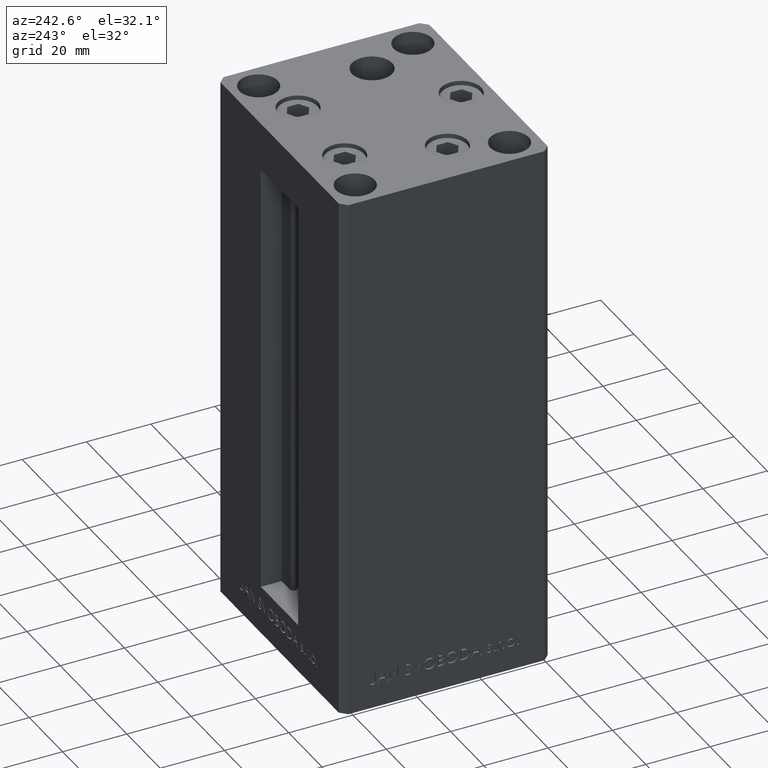
[diagram: clean part render]
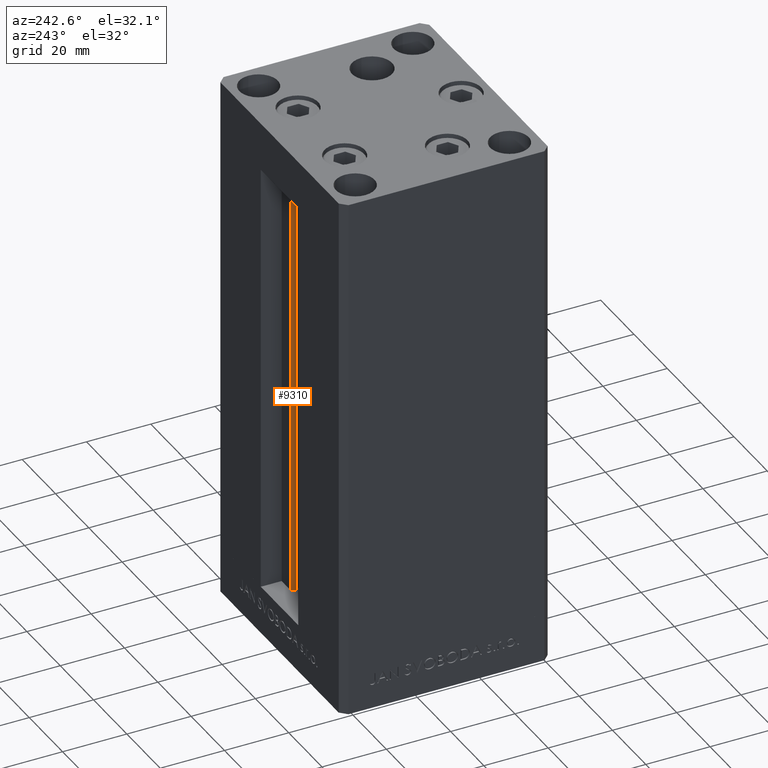
[diagram: same view with one face highlighted and labeled with its STEP entity id]
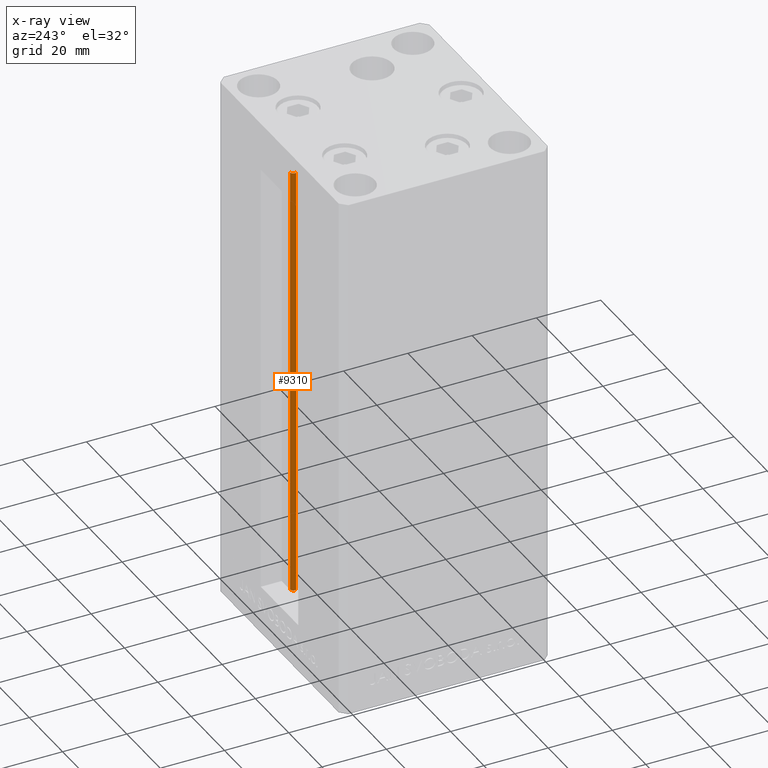
[diagram: x-ray of the same camera — body ghosted, the highlighted face saturated]
A machine part, auxiliary view. The second image highlights one B-rep face of the part: STEP entity #9310.
The next image is the same camera in x-ray: the body ghosted, the highlighted face saturated — about 0% of this face is hidden behind the body in this view.
In plain terms, the highlighted cylindrical surface (edge-blend (fillet) strip) has radius 0.9333 mm, axis along (0, 0, 1).
Its self-contained STEP definition (entity closure, byte-faithful):
#2545 = DIRECTION ( 'NONE',  ( -0.000000000000000000, -0.000000000000000000, -1.000000000000000000 ) ) ;
#3400 = DIRECTION ( 'NONE',  ( 1.000000000000000000, 0.000000000000000000, 0.000000000000000000 ) ) ;
#4241 = CARTESIAN_POINT ( 'NONE',  ( 6.183333333334001480, 25.99999999999999289, 0.000000000000000000 ) ) ;
#4924 = CARTESIAN_POINT ( 'NONE',  ( 6.183333333334001480, 25.06666666666599141, 0.000000000000000000 ) ) ;
#8149 = ORIENTED_EDGE ( 'NONE', *, *, #10015, .F. ) ;
#8212 = CARTESIAN_POINT ( 'NONE',  ( 5.375042956467947164, 24.59999999999899245, 0.000000000000000000 ) ) ;
#8720 = AXIS2_PLACEMENT_3D ( 'NONE', #35952, #2545, #24738 ) ;
#9310 = ADVANCED_FACE ( 'NONE', ( #39064 ), #35080, .T. ) ;
#10015 = EDGE_CURVE ( 'NONE', #45570, #30165, #49324, .T. ) ;
#10648 = CARTESIAN_POINT ( 'NONE',  ( 5.375042956467947164, 24.59999999999899245, 0.000000000000000000 ) ) ;
#12809 = ORIENTED_EDGE ( 'NONE', *, *, #15899, .F. ) ;
#12887 = DIRECTION ( 'NONE',  ( 1.000000000000000000, 0.000000000000000000, 0.000000000000000000 ) ) ;
#15899 = EDGE_CURVE ( 'NONE', #30165, #29676, #45615, .T. ) ;
#16310 = VECTOR ( 'NONE', #38624, 1000.000000000000000 ) ;
#19245 = EDGE_CURVE ( 'NONE', #45570, #29334, #22690, .T. ) ;
#19442 = DIRECTION ( 'NONE',  ( -0.000000000000000000, -0.000000000000000000, 1.000000000000000000 ) ) ;
#19590 = EDGE_CURVE ( 'NONE', #29334, #29676, #26774, .T. ) ;
#19892 = DIRECTION ( 'NONE',  ( -0.000000000000000000, -0.000000000000000000, 1.000000000000000000 ) ) ;
#22565 = CARTESIAN_POINT ( 'NONE',  ( 6.183333333334001480, 25.99999999999999289, 0.000000000000000000 ) ) ;
#22690 = LINE ( 'NONE', #8212, #33104 ) ;
#23675 = EDGE_LOOP ( 'NONE', ( #12809, #8149, #37852, #28054 ) ) ;
#24738 = DIRECTION ( 'NONE',  ( 1.000000000000000000, 0.000000000000000000, 0.000000000000000000 ) ) ;
#26719 = CARTESIAN_POINT ( 'NONE',  ( 6.183333333334001480, 25.99999999999999289, 136.0000000000000000 ) ) ;
#26774 = CIRCLE ( 'NONE', #49050, 0.9333333333340008142 ) ;
#28054 = ORIENTED_EDGE ( 'NONE', *, *, #19590, .T. ) ;
#29334 = VERTEX_POINT ( 'NONE', #36280 ) ;
#29676 = VERTEX_POINT ( 'NONE', #26719 ) ;
#30165 = VERTEX_POINT ( 'NONE', #22565 ) ;
#33104 = VECTOR ( 'NONE', #19442, 1000.000000000000000 ) ;
#33793 = CARTESIAN_POINT ( 'NONE',  ( 6.183333333334001480, 25.06666666666599141, 136.0000000000000000 ) ) ;
#35080 = CYLINDRICAL_SURFACE ( 'NONE', #39746, 0.9333333333340008142 ) ;
#35952 = CARTESIAN_POINT ( 'NONE',  ( 6.183333333334001480, 25.06666666666599141, 0.000000000000000000 ) ) ;
#36280 = CARTESIAN_POINT ( 'NONE',  ( 5.375042956467948052, 24.59999999999899245, 136.0000000000000000 ) ) ;
#37852 = ORIENTED_EDGE ( 'NONE', *, *, #19245, .T. ) ;
#38624 = DIRECTION ( 'NONE',  ( -0.000000000000000000, -0.000000000000000000, 1.000000000000000000 ) ) ;
#39064 = FACE_OUTER_BOUND ( 'NONE', #23675, .T. ) ;
#39746 = AXIS2_PLACEMENT_3D ( 'NONE', #4924, #19892, #12887 ) ;
#45279 = DIRECTION ( 'NONE',  ( 0.000000000000000000, 0.000000000000000000, -1.000000000000000000 ) ) ;
#45570 = VERTEX_POINT ( 'NONE', #10648 ) ;
#45615 = LINE ( 'NONE', #4241, #16310 ) ;
#49050 = AXIS2_PLACEMENT_3D ( 'NONE', #33793, #45279, #3400 ) ;
#49324 = CIRCLE ( 'NONE', #8720, 0.9333333333340008142 ) ;